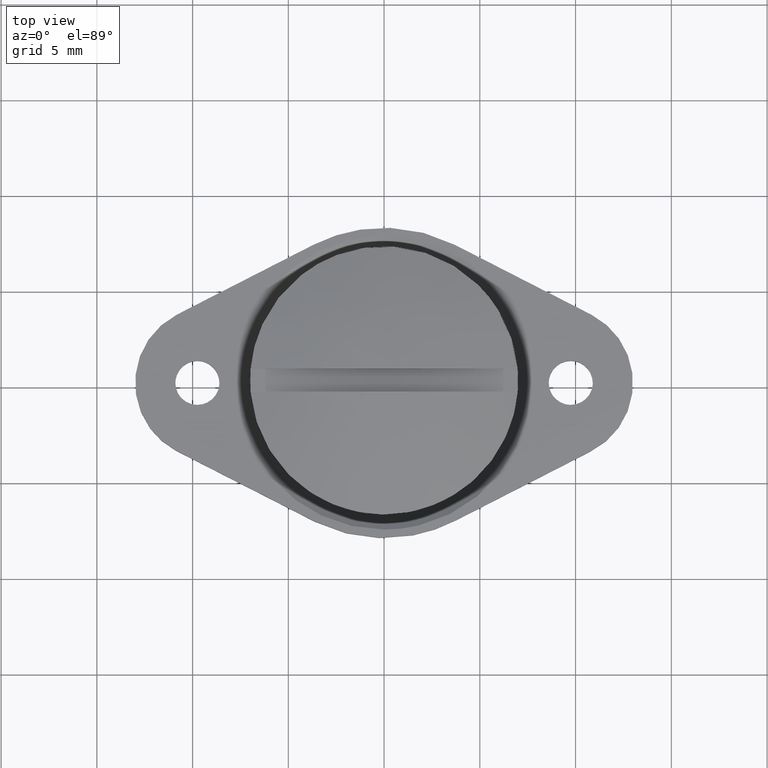
[diagram: clean part render]
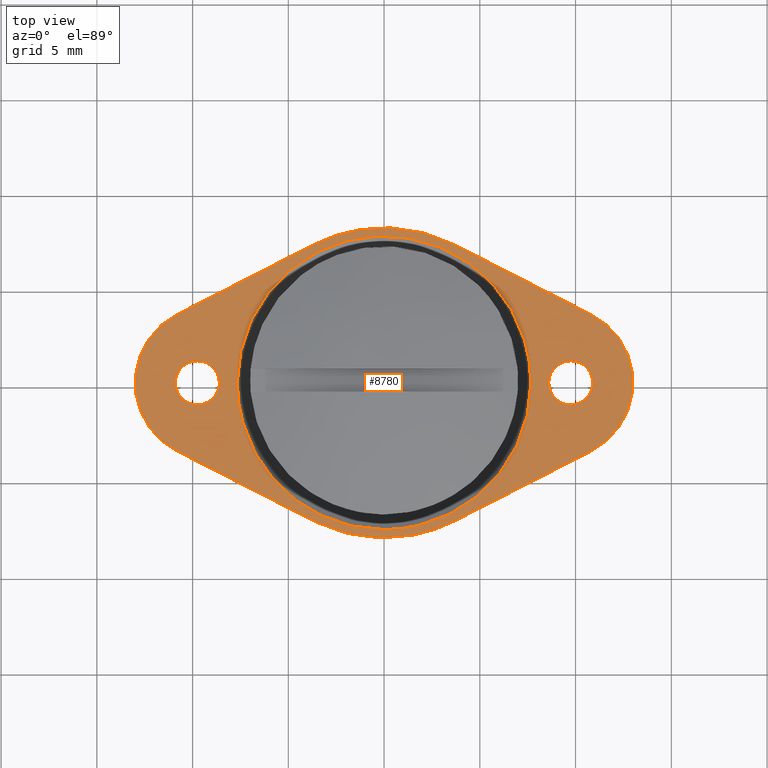
[diagram: same view with one face highlighted and labeled with its STEP entity id]
A machine part, top view. The second image highlights one B-rep face of the part: STEP entity #8780.
In plain terms, the highlighted face is a freeform B-spline surface patch.
Its self-contained STEP definition (entity closure, byte-faithful):
#6707=CARTESIAN_POINT('',(-8.973071162329152,-0.847869071242769,-6.999999999999900));
#6708=VERTEX_POINT('',#6707);
#6714=CARTESIAN_POINT('',(-8.600000000000000,0.0,-6.999999999999901));
#6715=VERTEX_POINT('',#6714);
#6716=CARTESIAN_POINT('',(-8.973071162329152,-0.847869071242769,-6.999999999999900));
#6717=CARTESIAN_POINT('',(-8.914492787283733,-0.794198517808518,-6.999999999999901));
#6718=CARTESIAN_POINT('',(-8.795249965474993,-0.659728944982839,-6.999999999999909));
#6719=CARTESIAN_POINT('',(-8.643776212959718,-0.377315910003347,-6.999999999999883));
#6720=CARTESIAN_POINT('',(-8.599881243430543,-0.139052935895015,-6.999999999999920));
#6721=CARTESIAN_POINT('',(-8.600000000000000,0.0,-6.999999999999901));
#6722=B_SPLINE_CURVE_WITH_KNOTS('',3,(#6716,#6717,#6718,#6719,#6720,#6721),.UNSPECIFIED.,.F.,.U.,(4,1,1,4),(0.000000013521360,0.238348223953996,0.536279028673983,0.953392855253354),.UNSPECIFIED.);
#6723=EDGE_CURVE('',#6708,#6715,#6722,.T.);
#6725=CARTESIAN_POINT('',(-9.750000664746422,1.149999999999808,-6.999999999999901));
#6726=VERTEX_POINT('',#6725);
#6727=CARTESIAN_POINT('',(-8.600000000000000,0.0,-6.999999999999901));
#6728=CARTESIAN_POINT('',(-8.599924132168434,0.127026263794521,-6.999999999999893));
#6729=CARTESIAN_POINT('',(-8.633871158238147,0.329243845972545,-6.999999999999906));
#6730=CARTESIAN_POINT('',(-8.761822743827786,0.608596517603373,-6.999999999999894));
#6731=CARTESIAN_POINT('',(-8.910758863907864,0.799457926850312,-6.999999999999907));
#6732=CARTESIAN_POINT('',(-9.099519268937208,0.956281017722409,-6.999999999999895));
#6733=CARTESIAN_POINT('',(-9.301865718854135,1.069300016548909,-6.999999999999895));
#6734=CARTESIAN_POINT('',(-9.528903785455405,1.136643407520840,-6.999999999999940));
#6735=CARTESIAN_POINT('',(-9.684144653952354,1.150002128913371,-6.999999999999839));
#6736=CARTESIAN_POINT('',(-9.750000664746422,1.149999999999808,-6.999999999999901));
#6737=B_SPLINE_CURVE_WITH_KNOTS('',3,(#6727,#6728,#6729,#6730,#6731,#6732,#6733,#6734,#6735,#6736),.UNSPECIFIED.,.F.,.U.,(4,1,1,1,1,1,1,4),(0.000000048713214,0.381042794343570,0.606849093334801,0.917311537844349,1.100784162428773,1.340707872894254,1.608857089966248,1.806427484974979),.UNSPECIFIED.);
#6738=EDGE_CURVE('',#6715,#6726,#6737,.T.);
#6740=CARTESIAN_POINT('',(-10.900000000000000,0.0,-6.999999999999901));
#6741=VERTEX_POINT('',#6740);
#6742=CARTESIAN_POINT('',(-9.750000664746422,1.149999999999808,-6.999999999999901));
#6743=CARTESIAN_POINT('',(-9.815856697594640,1.150002065509786,-6.999999999999900));
#6744=CARTESIAN_POINT('',(-9.971097282406973,1.136643411437828,-6.999999999999902));
#6745=CARTESIAN_POINT('',(-10.198132692563700,1.069296545668987,-6.999999999999900));
#6746=CARTESIAN_POINT('',(-10.437663770849399,0.935551592255450,-6.999999999999918));
#6747=CARTESIAN_POINT('',(-10.625473977120430,0.761086135892987,-6.999999999999852));
#6748=CARTESIAN_POINT('',(-10.765832765930989,0.553741102043477,-7.000000000000041));
#6749=CARTESIAN_POINT('',(-10.870142494303330,0.310446236755277,-6.999999999999806));
#6750=CARTESIAN_POINT('',(-10.900059937518289,0.117612936182727,-6.999999999999906));
#6751=CARTESIAN_POINT('',(-10.900000000000000,0.0,-6.999999999999901));
#6752=B_SPLINE_CURVE_WITH_KNOTS('',3,(#6742,#6743,#6744,#6745,#6746,#6747,#6748,#6749,#6750,#6751),.UNSPECIFIED.,.F.,.U.,(4,1,1,1,1,1,1,4),(0.000000048942034,0.197570362115641,0.465719467744257,0.705643079026272,1.016107629091632,1.227804094314206,1.453610022185857,1.806426735646137),.UNSPECIFIED.);
#6753=EDGE_CURVE('',#6726,#6741,#6752,.T.);
#6755=CARTESIAN_POINT('',(-10.552046704334581,-0.824148470833980,-6.999999999999899));
#6756=VERTEX_POINT('',#6755);
#6757=CARTESIAN_POINT('',(-10.900000000000000,0.0,-6.999999999999901));
#6758=CARTESIAN_POINT('',(-10.900013546747230,-0.081356355091174,-6.999999999999892));
#6759=CARTESIAN_POINT('',(-10.883166878065619,-0.239271248813577,-6.999999999999912));
#6760=CARTESIAN_POINT('',(-10.788690294131440,-0.532231781818059,-6.999999999999893));
#6761=CARTESIAN_POINT('',(-10.658501855263751,-0.720778161943284,-6.999999999999917));
#6762=CARTESIAN_POINT('',(-10.552046704334581,-0.824148470833980,-6.999999999999899));
#6763=B_SPLINE_CURVE_WITH_KNOTS('',3,(#6757,#6758,#6759,#6760,#6761,#6762),.UNSPECIFIED.,.F.,.U.,(4,1,1,4),(0.000000012686184,0.244067662846474,0.473770848472298,0.918842580395070),.UNSPECIFIED.);
#6764=EDGE_CURVE('',#6741,#6756,#6763,.T.);
#6800=CARTESIAN_POINT('',(-9.749999335253566,-1.149999999999808,-6.999999999999900));
#6801=VERTEX_POINT('',#6800);
#6802=CARTESIAN_POINT('',(-10.552046704334581,-0.824148470833980,-6.999999999999899));
#6803=CARTESIAN_POINT('',(-10.489110283336281,-0.885417603231335,-6.999999999999887));
#6804=CARTESIAN_POINT('',(-10.349111742671100,-0.993425684765523,-6.999999999999919));
#6805=CARTESIAN_POINT('',(-10.078189689187200,-1.117087980460149,-6.999999999999871));
#6806=CARTESIAN_POINT('',(-9.870199022162481,-1.150055695114584,-6.999999999999898));
#6807=CARTESIAN_POINT('',(-9.749999335253566,-1.149999999999808,-6.999999999999900));
#6808=B_SPLINE_CURVE_WITH_KNOTS('',3,(#6802,#6803,#6804,#6805,#6806,#6807),.UNSPECIFIED.,.F.,.U.,(4,1,1,4),(0.000000010681338,0.263502431591897,0.527000923793713,0.887585074362624),.UNSPECIFIED.);
#6809=EDGE_CURVE('',#6756,#6801,#6808,.T.);
#6811=CARTESIAN_POINT('',(-9.749999335253566,-1.149999999999808,-6.999999999999900));
#6812=CARTESIAN_POINT('',(-9.652256568876428,-1.150019809280918,-6.999999999999892));
#6813=CARTESIAN_POINT('',(-9.447886378769713,-1.123807990554694,-6.999999999999912));
#6814=CARTESIAN_POINT('',(-9.182794485529554,-1.013583048355447,-6.999999999999894));
#6815=CARTESIAN_POINT('',(-9.032027826763295,-0.901899418596256,-6.999999999999893));
#6816=CARTESIAN_POINT('',(-8.973071162329152,-0.847869071242769,-6.999999999999900));
#6817=B_SPLINE_CURVE_WITH_KNOTS('',3,(#6811,#6812,#6813,#6814,#6815,#6816),.UNSPECIFIED.,.F.,.U.,(4,1,1,4),(5.150789E-009,0.293235382460952,0.613128345410729,0.853048144835819),.UNSPECIFIED.);
#6818=EDGE_CURVE('',#6801,#6708,#6817,.T.);
#6912=CARTESIAN_POINT('',(10.526928837670850,-0.847869071242769,-6.999999999999901));
#6913=VERTEX_POINT('',#6912);
#6919=CARTESIAN_POINT('',(10.900000000000000,0.0,-6.999999999999901));
#6920=VERTEX_POINT('',#6919);
#6921=CARTESIAN_POINT('',(10.526928837670850,-0.847869071242769,-6.999999999999901));
#6922=CARTESIAN_POINT('',(10.618516366311930,-0.764050595073318,-6.999999999999937));
#6923=CARTESIAN_POINT('',(10.739791515459361,-0.609840146389403,-6.999999999999869));
#6924=CARTESIAN_POINT('',(10.868321609720351,-0.317753414638831,-6.999999999999920));
#6925=CARTESIAN_POINT('',(10.900076828475351,-0.124150254499345,-6.999999999999898));
#6926=CARTESIAN_POINT('',(10.900000000000000,0.0,-6.999999999999901));
#6927=B_SPLINE_CURVE_WITH_KNOTS('',3,(#6921,#6922,#6923,#6924,#6925,#6926),.UNSPECIFIED.,.F.,.U.,(4,1,1,4),(0.000000013522028,0.372420003848257,0.580972864916569,0.953392855253357),.UNSPECIFIED.);
#6928=EDGE_CURVE('',#6913,#6920,#6927,.T.);
#6930=CARTESIAN_POINT('',(9.749999335253579,1.149999999999808,-6.999999999999901));
#6931=VERTEX_POINT('',#6930);
#6932=CARTESIAN_POINT('',(10.900000000000000,0.0,-6.999999999999901));
#6933=CARTESIAN_POINT('',(10.900039135561530,0.108200149275103,-6.999999999999900));
#6934=CARTESIAN_POINT('',(10.873907067003451,0.291638422874395,-6.999999999999901));
#6935=CARTESIAN_POINT('',(10.763350695372020,0.568173053415739,-6.999999999999901));
#6936=CARTESIAN_POINT('',(10.610143987561740,0.780129479416061,-6.999999999999899));
#6937=CARTESIAN_POINT('',(10.401542582451301,0.957802763733774,-6.999999999999905));
#6938=CARTESIAN_POINT('',(10.130955718150290,1.104639274430191,-6.999999999999875));
#6939=CARTESIAN_POINT('',(9.895852020429473,1.150137187076989,-6.999999999999961));
#6940=CARTESIAN_POINT('',(9.749999335253579,1.149999999999808,-6.999999999999901));
#6941=B_SPLINE_CURVE_WITH_KNOTS('',3,(#6932,#6933,#6934,#6935,#6936,#6937,#6938,#6939,#6940),.UNSPECIFIED.,.F.,.U.,(4,1,1,1,1,1,4),(0.000000048714302,0.324590885197300,0.550396906785969,0.889115995878378,1.100784162429223,1.368933378834697,1.806427484974978),.UNSPECIFIED.);
#6942=EDGE_CURVE('',#6920,#6931,#6941,.T.);
#6944=CARTESIAN_POINT('',(8.600000000000000,0.0,-6.999999999999901));
#6945=VERTEX_POINT('',#6944);
#6946=CARTESIAN_POINT('',(9.749999335253579,1.149999999999808,-6.999999999999901));
#6947=CARTESIAN_POINT('',(9.622977249680623,1.150066609989067,-6.999999999999901));
#6948=CARTESIAN_POINT('',(9.387815965732306,1.110638998628036,-6.999999999999910));
#6949=CARTESIAN_POINT('',(9.112819095390453,0.970086437124886,-6.999999999999886));
#6950=CARTESIAN_POINT('',(8.929449004966287,0.813805549607341,-6.999999999999942));
#6951=CARTESIAN_POINT('',(8.793713553647701,0.650486100034445,-6.999999999999852));
#6952=CARTESIAN_POINT('',(8.689935546326320,0.464649696727964,-6.999999999999921));
#6953=CARTESIAN_POINT('',(8.617223049433736,0.239907754944288,-6.999999999999863));
#6954=CARTESIAN_POINT('',(8.599986024347544,0.084674073480315,-6.999999999999844));
#6955=CARTESIAN_POINT('',(8.600000000000000,0.0,-6.999999999999901));
#6956=B_SPLINE_CURVE_WITH_KNOTS('',3,(#6946,#6947,#6948,#6949,#6950,#6951,#6952,#6953,#6954,#6955),.UNSPECIFIED.,.F.,.U.,(4,1,1,1,1,1,1,4),(0.000000048940833,0.381042636540744,0.705643079026415,0.917311157117825,1.100783705128980,1.340707316902257,1.552404500919723,1.806426735646170),.UNSPECIFIED.);
#6957=EDGE_CURVE('',#6931,#6945,#6956,.T.);
#6959=CARTESIAN_POINT('',(8.947953295665423,-0.824148470833980,-6.999999999999901));
#6960=VERTEX_POINT('',#6959);
#6961=CARTESIAN_POINT('',(8.600000000000000,0.0,-6.999999999999901));
#6962=CARTESIAN_POINT('',(8.599928212938103,-0.124438100824121,-6.999999999999903));
#6963=CARTESIAN_POINT('',(8.629808908179632,-0.306238243752718,-6.999999999999907));
#6964=CARTESIAN_POINT('',(8.749291340617322,-0.589200823491641,-6.999999999999895));
#6965=CARTESIAN_POINT('',(8.858717868048936,-0.737414924312825,-6.999999999999911));
#6966=CARTESIAN_POINT('',(8.947953295665423,-0.824148470833980,-6.999999999999901));
#6967=B_SPLINE_CURVE_WITH_KNOTS('',3,(#6961,#6962,#6963,#6964,#6965,#6966),.UNSPECIFIED.,.F.,.U.,(4,1,1,4),(0.000000012686261,0.373282851291926,0.545559741810730,0.918842580395070),.UNSPECIFIED.);
#6968=EDGE_CURVE('',#6945,#6960,#6967,.T.);
#7004=CARTESIAN_POINT('',(9.750000664746436,-1.149999999999808,-6.999999999999901));
#7005=VERTEX_POINT('',#7004);
#7006=CARTESIAN_POINT('',(8.947953295665423,-0.824148470833980,-6.999999999999901));
#7007=CARTESIAN_POINT('',(9.040660140017200,-0.914500018350492,-6.999999999999898));
#7008=CARTESIAN_POINT('',(9.222258877097826,-1.039340300387985,-6.999999999999896));
#7009=CARTESIAN_POINT('',(9.504994653566170,-1.132881429591377,-6.999999999999940));
#7010=CARTESIAN_POINT('',(9.671412623420963,-1.150009705658974,-6.999999999999876));
#7011=CARTESIAN_POINT('',(9.750000664746436,-1.149999999999808,-6.999999999999901));
#7012=B_SPLINE_CURVE_WITH_KNOTS('',3,(#7006,#7007,#7008,#7009,#7010,#7011),.UNSPECIFIED.,.F.,.U.,(4,1,1,4),(0.000000010680858,0.388321604129967,0.651820219581262,0.887585074362624),.UNSPECIFIED.);
#7013=EDGE_CURVE('',#6960,#7005,#7012,.T.);
#7015=CARTESIAN_POINT('',(9.750000664746436,-1.149999999999808,-6.999999999999901));
#7016=CARTESIAN_POINT('',(9.883304194261740,-1.150105049634778,-6.999999999999892));
#7017=CARTESIAN_POINT('',(10.087599839625010,-1.114052107816215,-6.999999999999907));
#7018=CARTESIAN_POINT('',(10.345910200800180,-0.992276723194544,-6.999999999999906));
#7019=CARTESIAN_POINT('',(10.467975430994629,-0.901907886440422,-6.999999999999895));
#7020=CARTESIAN_POINT('',(10.526928837670850,-0.847869071242769,-6.999999999999901));
#7021=B_SPLINE_CURVE_WITH_KNOTS('',3,(#7015,#7016,#7017,#7018,#7019,#7020),.UNSPECIFIED.,.F.,.U.,(4,1,1,4),(5.150929E-009,0.399866437768865,0.613128345410712,0.853048144835816),.UNSPECIFIED.);
#7022=EDGE_CURVE('',#7005,#6913,#7021,.T.);
#7072=CARTESIAN_POINT('',(-0.438448248037078,7.653845476769122,-7.000011660728402));
#7073=VERTEX_POINT('',#7072);
#7074=CARTESIAN_POINT('',(7.666408439856440,0.0,-6.999999999999920));
#7075=VERTEX_POINT('',#7074);
#7076=CARTESIAN_POINT('',(-0.438448248037078,7.653845476769122,-7.000011660728402));
#7077=CARTESIAN_POINT('',(0.032069832606488,7.680850994552582,-7.000011322290420));
#7078=CARTESIAN_POINT('',(0.945456610847706,7.648802768899525,-7.000010604635172));
#7079=CARTESIAN_POINT('',(2.157087721860070,7.386688938919213,-7.000009494931676));
#7080=CARTESIAN_POINT('',(3.314273164507234,6.947812642379448,-7.000008299685620));
#7081=CARTESIAN_POINT('',(4.292495910800391,6.389949791243274,-7.000007155087292));
#7082=CARTESIAN_POINT('',(5.068514414405165,5.769848254875868,-7.000006119567712));
#7083=CARTESIAN_POINT('',(5.672183613308732,5.177596468285789,-7.000005235123046));
#7084=CARTESIAN_POINT('',(6.171644155185614,4.576347521727123,-7.000004423467503));
#7085=CARTESIAN_POINT('',(6.670050926606109,3.813467021375792,-7.000003496532210));
#7086=CARTESIAN_POINT('',(7.056486650226390,3.041746644463809,-7.000002648402588));
#7087=CARTESIAN_POINT('',(7.355022816134261,2.215144146213214,-7.000001827705478));
#7088=CARTESIAN_POINT('',(7.597245310399555,1.218830675702290,-7.000000927951047));
#7089=CARTESIAN_POINT('',(7.666460361043143,0.471290968463194,-7.000000338437108));
#7090=CARTESIAN_POINT('',(7.666408439856440,0.0,-6.999999999999920));
#7091=B_SPLINE_CURVE_WITH_KNOTS('',3,(#7076,#7077,#7078,#7079,#7080,#7081,#7082,#7083,#7084,#7085,#7086,#7087,#7088,#7089,#7090),.UNSPECIFIED.,.F.,.U.,(4,1,1,1,1,1,1,1,1,1,1,1,4),(0.000000021708816,1.413869076944767,2.730231315085106,3.705317038458352,5.119191259843709,6.094277358675871,6.679308413967680,7.654398769608471,8.434468824599396,9.409554030269185,10.238379037793040,11.067204295211511,12.481066016762840),.UNSPECIFIED.);
#7092=EDGE_CURVE('',#7073,#7075,#7091,.T.);
#7191=CARTESIAN_POINT('',(-7.666409835646899,0.0,-6.999998919285289));
#7192=VERTEX_POINT('',#7191);
#7200=CARTESIAN_POINT('',(-0.000001222085076,-7.666408439856422,-6.999999459642567));
#7201=VERTEX_POINT('',#7200);
#7202=CARTESIAN_POINT('',(-0.000001222085076,-7.666408439856422,-6.999999459642567));
#7203=CARTESIAN_POINT('',(-0.329284394964705,-7.666419952744639,-6.999999436433456));
#7204=CARTESIAN_POINT('',(-0.956486193988371,-7.625937354623594,-6.999999392225901));
#7205=CARTESIAN_POINT('',(-1.774408783508370,-7.471047592490461,-6.999999334575663));
#7206=CARTESIAN_POINT('',(-2.723101168845381,-7.192827841936959,-6.999999267708256));
#7207=CARTESIAN_POINT('',(-3.643423305231374,-6.781477354237040,-6.999999202840487));
#7208=CARTESIAN_POINT('',(-4.644195604165620,-6.130359525222192,-6.999999132302299));
#7209=CARTESIAN_POINT('',(-5.558729186614338,-5.336647003974534,-6.999999067842593));
#7210=CARTESIAN_POINT('',(-6.362288358975561,-4.345170681020768,-6.999999011204515));
#7211=CARTESIAN_POINT('',(-6.944828515834532,-3.301846291843983,-6.999998970145373));
#7212=CARTESIAN_POINT('',(-7.341154056189374,-2.292921795295117,-6.999998942210412));
#7213=CARTESIAN_POINT('',(-7.602476389456003,-1.207364003766113,-6.999998923791571));
#7214=CARTESIAN_POINT('',(-7.666435269252764,-0.407682340296926,-6.999998919283520));
#7215=CARTESIAN_POINT('',(-7.666409835646899,0.0,-6.999998919285289));
#7216=B_SPLINE_CURVE_WITH_KNOTS('',3,(#7202,#7203,#7204,#7205,#7206,#7207,#7208,#7209,#7210,#7211,#7212,#7213,#7214,#7215),.UNSPECIFIED.,.F.,.U.,(4,1,1,1,1,1,1,1,1,1,1,4),(0.000000021761291,0.987849446473737,1.881616711282367,2.493149042574590,3.951412949860670,4.892225640090810,6.068220044905898,7.573528190630642,8.702504512198646,9.643316936095729,10.819340388013609,12.042385515458610),.UNSPECIFIED.);
#7217=EDGE_CURVE('',#7201,#7192,#7216,.T.);
#7219=CARTESIAN_POINT('',(7.666408439856440,0.0,-6.999999999999920));
#7220=CARTESIAN_POINT('',(7.666506947041085,-0.548815076095216,-7.000000000006861));
#7221=CARTESIAN_POINT('',(7.578457739537535,-1.364134565542899,-6.999999993800830));
#7222=CARTESIAN_POINT('',(7.259566989617770,-2.530345444104531,-6.999999971324219));
#7223=CARTESIAN_POINT('',(6.853370867299224,-3.502570687654203,-6.999999942693952));
#7224=CARTESIAN_POINT('',(6.270543913422980,-4.454965516950223,-6.999999901614183));
#7225=CARTESIAN_POINT('',(5.650200910538549,-5.206107407764380,-6.999999857890021));
#7226=CARTESIAN_POINT('',(5.062422070602998,-5.772616283576546,-6.999999816461081));
#7227=CARTESIAN_POINT('',(4.313065633327668,-6.368673605071400,-6.999999763643791));
#7228=CARTESIAN_POINT('',(3.445488767551293,-6.881441571963756,-6.999999702493646));
#7229=CARTESIAN_POINT('',(2.309331211330460,-7.339850665568092,-6.999999622412922));
#7230=CARTESIAN_POINT('',(1.207373083268270,-7.605131633042917,-6.999999544743042));
#7231=CARTESIAN_POINT('',(0.376319973834362,-7.666418124375912,-6.999999486166890));
#7232=CARTESIAN_POINT('',(-0.000001222085076,-7.666408439856422,-6.999999459642567));
#7233=B_SPLINE_CURVE_WITH_KNOTS('',3,(#7219,#7220,#7221,#7222,#7223,#7224,#7225,#7226,#7227,#7228,#7229,#7230,#7231,#7232),.UNSPECIFIED.,.F.,.U.,(4,1,1,1,1,1,1,1,1,1,1,4),(0.000000021701071,1.646414820873350,2.446106694184207,3.622125105981898,4.798147823991793,5.786004044185741,6.538626356349020,7.244238250000528,8.655463469803632,9.549238175790700,10.913417519664501,12.042386106343731),.UNSPECIFIED.);
#7234=EDGE_CURVE('',#7075,#7201,#7233,.T.);
#7262=CARTESIAN_POINT('',(-7.666409835646899,0.0,-6.999998919285289));
#7263=CARTESIAN_POINT('',(-7.666420518288013,0.377721602393349,-6.999999251655498));
#7264=CARTESIAN_POINT('',(-7.601559846833470,1.254049947534087,-7.000000076686360));
#7265=CARTESIAN_POINT('',(-7.306559832769914,2.432139860786029,-7.000001358498618));
#7266=CARTESIAN_POINT('',(-6.807947650850101,3.585703422530111,-7.000002787928914));
#7267=CARTESIAN_POINT('',(-6.208057440200030,4.551631708417894,-7.000004136409332));
#7268=CARTESIAN_POINT('',(-5.465280741399102,5.411509950829627,-7.000005510308017));
#7269=CARTESIAN_POINT('',(-4.770549541534724,6.020092465139997,-7.000006623151177));
#7270=CARTESIAN_POINT('',(-4.077898105231633,6.507284490550886,-7.000007627447672));
#7271=CARTESIAN_POINT('',(-3.391965245580715,6.893201238672444,-7.000008537043314));
#7272=CARTESIAN_POINT('',(-2.500116106215573,7.270433481228254,-7.000009610111585));
#7273=CARTESIAN_POINT('',(-1.521627206154450,7.541305560209188,-7.000010661584541));
#7274=CARTESIAN_POINT('',(-0.785384820240560,7.633983805191556,-7.000011354949316));
#7275=CARTESIAN_POINT('',(-0.438448248037078,7.653845476769122,-7.000011660728402));
#7276=B_SPLINE_CURVE_WITH_KNOTS('',3,(#7262,#7263,#7264,#7265,#7266,#7267,#7268,#7269,#7270,#7271,#7272,#7273,#7274,#7275),.UNSPECIFIED.,.F.,.U.,(4,1,1,1,1,1,1,1,1,1,1,4),(0.000000020137604,1.133171185224290,2.628960076475257,3.626152286613080,4.895306888756079,6.028466613098548,7.025660304392202,7.660240387100139,8.566783674311484,9.382671848472519,10.561170482418991,11.603686146518379),.UNSPECIFIED.);
#7277=EDGE_CURVE('',#7192,#7073,#7276,.T.);
#8374=CARTESIAN_POINT('',(3.690000000000000,7.211000000000000,-6.999999999999901));
#8375=VERTEX_POINT('',#8374);
#8381=CARTESIAN_POINT('',(10.822200000000000,3.561000000000120,-6.999999999999901));
#8382=VERTEX_POINT('',#8381);
#8383=CARTESIAN_POINT('',(10.822200000000000,3.561000000000120,-6.999999999999901));
#8384=CARTESIAN_POINT('',(3.690000000000000,7.211000000000000,-6.999999999999901));
#8385=QUASI_UNIFORM_CURVE('',1,(#8383,#8384),.UNSPECIFIED.,.F.,.U.);
#8386=EDGE_CURVE('',#8382,#8375,#8385,.T.);
#8432=CARTESIAN_POINT('',(10.753063837434420,-3.595381368072060,-6.999999999999901));
#8433=VERTEX_POINT('',#8432);
#8434=CARTESIAN_POINT('',(10.753063837434420,-3.595381368072060,-6.999999999999901));
#8435=CARTESIAN_POINT('',(11.064195891701081,-3.443790695475301,-6.999999999999917));
#8436=CARTESIAN_POINT('',(11.530109817975889,-3.136002344690403,-6.999999999999890));
#8437=CARTESIAN_POINT('',(12.034474445997811,-2.625793788836571,-6.999999999999925));
#8438=CARTESIAN_POINT('',(12.373244225198540,-2.171973268645427,-6.999999999999859));
#8439=CARTESIAN_POINT('',(12.665408212342861,-1.646179249724495,-6.999999999999915));
#8440=CARTESIAN_POINT('',(12.871743801672720,-1.067938414510692,-6.999999999999900));
#8441=CARTESIAN_POINT('',(12.983500260888590,-0.477271854487211,-6.999999999999909));
#8442=CARTESIAN_POINT('',(13.016555006765129,0.146304263228524,-6.999999999999900));
#8443=CARTESIAN_POINT('',(12.944241476022921,0.768146695800234,-6.999999999999903));
#8444=CARTESIAN_POINT('',(12.781162458781241,1.334742758243973,-6.999999999999900));
#8445=CARTESIAN_POINT('',(12.578064918752091,1.813393451308392,-6.999999999999901));
#8446=CARTESIAN_POINT('',(12.291002253738410,2.302138040579547,-6.999999999999901));
#8447=CARTESIAN_POINT('',(11.872649220746190,2.812346439326341,-6.999999999999901));
#8448=CARTESIAN_POINT('',(11.372314180644080,3.243203272533068,-6.999999999999903));
#8449=CARTESIAN_POINT('',(10.996783704613531,3.471661177750193,-6.999999999999893));
#8450=CARTESIAN_POINT('',(10.822200000000000,3.561000000000120,-6.999999999999901));
#8451=B_SPLINE_CURVE_WITH_KNOTS('',3,(#8434,#8435,#8436,#8437,#8438,#8439,#8440,#8441,#8442,#8443,#8444,#8445,#8446,#8447,#8448,#8449,#8450),.UNSPECIFIED.,.F.,.U.,(4,1,1,1,1,1,1,1,1,1,1,1,1,1,4),(0.000000052563568,1.038255325153151,1.661220977965575,2.145751170935251,2.734107447900192,3.460889678106492,3.980037830787514,4.533753006778684,5.329756532733400,5.848892955207690,6.298813730382306,6.887169986239736,7.544746027826094,8.271527804442620,8.859874148150453),.UNSPECIFIED.);
#8452=EDGE_CURVE('',#8433,#8382,#8451,.T.);
#8475=CARTESIAN_POINT('',(3.777978903718435,-7.164975603800650,-6.999999999999901));
#8476=VERTEX_POINT('',#8475);
#8477=CARTESIAN_POINT('',(3.777978903718435,-7.164975603800650,-6.999999999999901));
#8478=CARTESIAN_POINT('',(10.753063837434420,-3.595381368072060,-6.999999999999901));
#8479=QUASI_UNIFORM_CURVE('',1,(#8477,#8478),.UNSPECIFIED.,.F.,.U.);
#8480=EDGE_CURVE('',#8476,#8433,#8479,.T.);
#8520=CARTESIAN_POINT('',(-3.601728211849590,-7.255174283776150,-6.999999999999901));
#8521=VERTEX_POINT('',#8520);
#8522=CARTESIAN_POINT('',(-3.601728211849590,-7.255174283776150,-6.999999999999901));
#8523=CARTESIAN_POINT('',(-3.029814692958318,-7.539271055585835,-6.999999999999872));
#8524=CARTESIAN_POINT('',(-2.234799274277727,-7.822528028471925,-6.999999999999935));
#8525=CARTESIAN_POINT('',(-0.959518783759497,-8.064251683625674,-6.999999999999872));
#8526=CARTESIAN_POINT('',(0.119649058687005,-8.134931609108797,-6.999999999999909));
#8527=CARTESIAN_POINT('',(1.314903260507734,-8.018334535443879,-6.999999999999916));
#8528=CARTESIAN_POINT('',(2.539981833595974,-7.726373597961270,-6.999999999999871));
#8529=CARTESIAN_POINT('',(3.319061743840906,-7.407036977693851,-6.999999999999941));
#8530=CARTESIAN_POINT('',(3.777978903718435,-7.164975603800650,-6.999999999999901));
#8531=B_SPLINE_CURVE_WITH_KNOTS('',3,(#8522,#8523,#8524,#8525,#8526,#8527,#8528,#8529,#8530),.UNSPECIFIED.,.F.,.U.,(4,1,1,1,1,1,4),(6.367967E-009,1.915711581739767,2.514374070883011,3.891283868513809,5.148472337247588,6.106332122278776,7.662845884414741),.UNSPECIFIED.);
#8532=EDGE_CURVE('',#8521,#8476,#8531,.T.);
#8555=CARTESIAN_POINT('',(-10.890826205881620,-3.524879609171265,-6.999999999999901));
#8556=VERTEX_POINT('',#8555);
#8557=CARTESIAN_POINT('',(-10.890826205881620,-3.524879609171265,-6.999999999999901));
#8558=CARTESIAN_POINT('',(-3.601728211849590,-7.255174283776150,-6.999999999999901));
#8559=QUASI_UNIFORM_CURVE('',1,(#8557,#8558),.UNSPECIFIED.,.F.,.U.);
#8560=EDGE_CURVE('',#8556,#8521,#8559,.T.);
#8606=CARTESIAN_POINT('',(-10.822200000000000,3.561000000000120,-6.999999999999901));
#8607=VERTEX_POINT('',#8606);
#8608=CARTESIAN_POINT('',(-10.822200000000000,3.561000000000120,-6.999999999999901));
#8609=CARTESIAN_POINT('',(-11.114858486223090,3.411326385365291,-6.999999999999904));
#8610=CARTESIAN_POINT('',(-11.596726331719349,3.084109514465359,-6.999999999999905));
#8611=CARTESIAN_POINT('',(-12.207054543663130,2.439106780543719,-6.999999999999896));
#8612=CARTESIAN_POINT('',(-12.594372249901641,1.806662316279706,-6.999999999999883));
#8613=CARTESIAN_POINT('',(-12.846875162318799,1.149077639127117,-6.999999999999949));
#8614=CARTESIAN_POINT('',(-12.994450904465131,0.482923879018323,-6.999999999999872));
#8615=CARTESIAN_POINT('',(-13.017738267638039,-0.269038127414603,-6.999999999999916));
#8616=CARTESIAN_POINT('',(-12.895265019994220,-0.987266409306356,-6.999999999999899));
#8617=CARTESIAN_POINT('',(-12.667625763687770,-1.642056712976609,-6.999999999999900));
#8618=CARTESIAN_POINT('',(-12.367244469651450,-2.191443696757973,-6.999999999999918));
#8619=CARTESIAN_POINT('',(-12.018091072549201,-2.639527007932594,-6.999999999999895));
#8620=CARTESIAN_POINT('',(-11.562734727802839,-3.099050911675895,-6.999999999999895));
#8621=CARTESIAN_POINT('',(-11.180536038039140,-3.369567551406365,-6.999999999999855));
#8622=CARTESIAN_POINT('',(-10.890826205881620,-3.524879609171265,-6.999999999999901));
#8623=B_SPLINE_CURVE_WITH_KNOTS('',3,(#8608,#8609,#8610,#8611,#8612,#8613,#8614,#8615,#8616,#8617,#8618,#8619,#8620,#8621,#8622),.UNSPECIFIED.,.F.,.U.,(4,1,1,1,1,1,1,1,1,1,1,1,4),(0.000000048817940,0.986114915770759,1.734221006639335,2.652341887351338,3.196419107946606,3.842507288518858,4.692598366329634,5.440691081524838,6.018766234579182,6.766866246505035,7.310941942439804,7.718996183310912,8.705111795800658),.UNSPECIFIED.);
#8624=EDGE_CURVE('',#8607,#8556,#8623,.T.);
#8647=CARTESIAN_POINT('',(-3.690000150076360,7.210999923196400,-6.999999999999901));
#8648=VERTEX_POINT('',#8647);
#8649=CARTESIAN_POINT('',(-3.690000150076360,7.210999923196400,-6.999999999999901));
#8650=CARTESIAN_POINT('',(-10.822200000000000,3.561000000000120,-6.999999999999901));
#8651=QUASI_UNIFORM_CURVE('',1,(#8649,#8650),.UNSPECIFIED.,.F.,.U.);
#8652=EDGE_CURVE('',#8648,#8607,#8651,.T.);
#8689=CARTESIAN_POINT('',(3.690000000000000,7.211000000000000,-6.999999999999901));
#8690=CARTESIAN_POINT('',(3.352498952669419,7.383732480080104,-6.999999999999901));
#8691=CARTESIAN_POINT('',(2.579576664421686,7.713076122338067,-6.999999999999910));
#8692=CARTESIAN_POINT('',(1.239878897415318,8.051780357234915,-6.999999999999889));
#8693=CARTESIAN_POINT('',(-0.021030242683534,8.131085695921598,-6.999999999999924));
#8694=CARTESIAN_POINT('',(-1.294993923588330,8.022519612221306,-6.999999999999912));
#8695=CARTESIAN_POINT('',(-2.448010517221492,7.762597801703304,-6.999999999999849));
#8696=CARTESIAN_POINT('',(-3.299213767837679,7.411017725664699,-6.999999999999906));
#8697=CARTESIAN_POINT('',(-3.690000150076360,7.210999923196400,-6.999999999999901));
#8698=B_SPLINE_CURVE_WITH_KNOTS('',3,(#8689,#8690,#8691,#8692,#8693,#8694,#8695,#8696,#8697),.UNSPECIFIED.,.F.,.U.,(4,1,1,1,1,1,4),(6.365457E-009,1.137410185192386,2.514286118369654,4.130603874742177,4.908838093571639,6.345574518558153,7.662577838958778),.UNSPECIFIED.);
#8699=EDGE_CURVE('',#8375,#8648,#8698,.T.);
#8743=CARTESIAN_POINT('',(-14.298465964755991,8.909531051624388,-6.999999999999920));
#8744=CARTESIAN_POINT('',(14.298486303734069,8.909531051624388,-6.999999999999920));
#8745=CARTESIAN_POINT('',(-14.298465964755991,-8.908578955955852,-6.999999999999920));
#8746=CARTESIAN_POINT('',(14.298486303734069,-8.908578955955852,-6.999999999999920));
#8747=B_SPLINE_SURFACE_WITH_KNOTS('',1,1,((#8743,#8745),(#8744,#8746)),.UNSPECIFIED.,.F.,.F.,.U.,(2,2),(2,2),(0.0,28.596952268490060),(0.0,17.818110007580241),.UNSPECIFIED.);
#8748=ORIENTED_EDGE('',*,*,#8699,.T.);
#8749=ORIENTED_EDGE('',*,*,#8652,.T.);
#8750=ORIENTED_EDGE('',*,*,#8624,.T.);
#8751=ORIENTED_EDGE('',*,*,#8560,.T.);
#8752=ORIENTED_EDGE('',*,*,#8532,.T.);
#8753=ORIENTED_EDGE('',*,*,#8480,.T.);
#8754=ORIENTED_EDGE('',*,*,#8452,.T.);
#8755=ORIENTED_EDGE('',*,*,#8386,.T.);
#8756=EDGE_LOOP('',(#8748,#8749,#8750,#8751,#8752,#8753,#8754,#8755));
#8757=FACE_OUTER_BOUND('',#8756,.T.);
#8758=ORIENTED_EDGE('',*,*,#7277,.T.);
#8759=ORIENTED_EDGE('',*,*,#7092,.T.);
#8760=ORIENTED_EDGE('',*,*,#7234,.T.);
#8761=ORIENTED_EDGE('',*,*,#7217,.T.);
#8762=EDGE_LOOP('',(#8758,#8759,#8760,#8761));
#8763=FACE_BOUND('',#8762,.T.);
#8764=ORIENTED_EDGE('',*,*,#6942,.F.);
#8765=ORIENTED_EDGE('',*,*,#6928,.F.);
#8766=ORIENTED_EDGE('',*,*,#7022,.F.);
#8767=ORIENTED_EDGE('',*,*,#7013,.F.);
#8768=ORIENTED_EDGE('',*,*,#6968,.F.);
#8769=ORIENTED_EDGE('',*,*,#6957,.F.);
#8770=EDGE_LOOP('',(#8764,#8765,#8766,#8767,#8768,#8769));
#8771=FACE_BOUND('',#8770,.T.);
#8772=ORIENTED_EDGE('',*,*,#6738,.F.);
#8773=ORIENTED_EDGE('',*,*,#6723,.F.);
#8774=ORIENTED_EDGE('',*,*,#6818,.F.);
#8775=ORIENTED_EDGE('',*,*,#6809,.F.);
#8776=ORIENTED_EDGE('',*,*,#6764,.F.);
#8777=ORIENTED_EDGE('',*,*,#6753,.F.);
#8778=EDGE_LOOP('',(#8772,#8773,#8774,#8775,#8776,#8777));
#8779=FACE_BOUND('',#8778,.T.);
#8780=ADVANCED_FACE('',(#8757,#8763,#8771,#8779),#8747,.F.);